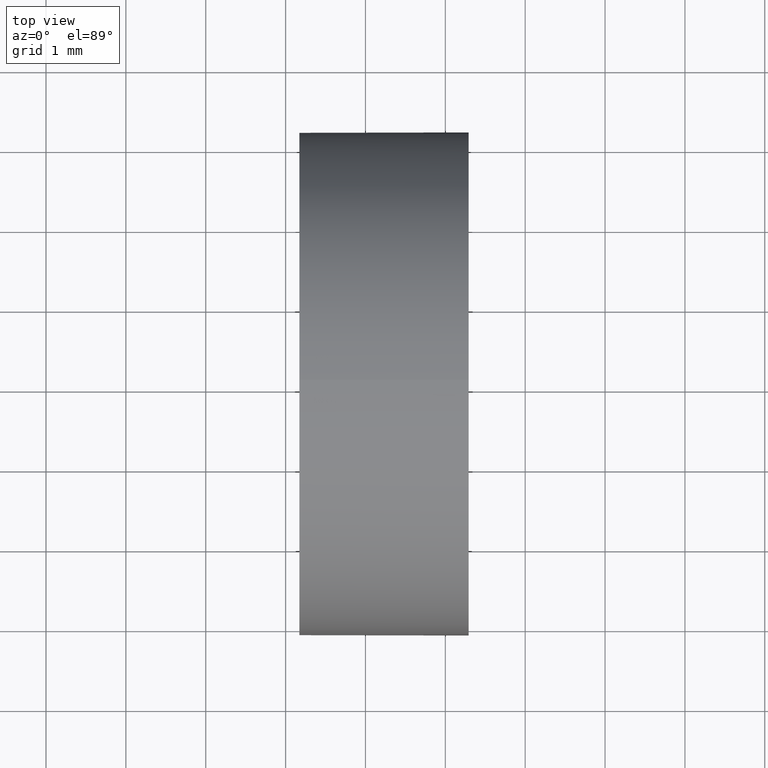
[diagram: clean part render]
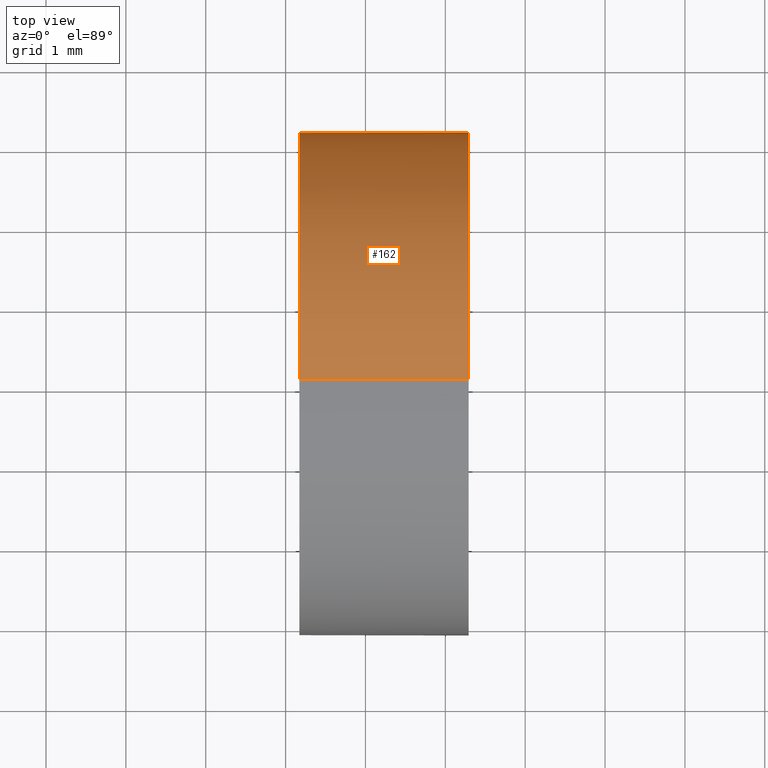
[diagram: same view with one face highlighted and labeled with its STEP entity id]
A machine part, top view. The second image highlights one B-rep face of the part: STEP entity #162.
In plain terms, the highlighted cylindrical surface (partial cylindrical patch) has radius 3.15 mm, axis along (-1, -0, -0).
Its self-contained STEP definition (entity closure, byte-faithful):
#1 = VECTOR ( 'NONE', #32, 1000.000000000000000 ) ;
#15 = AXIS2_PLACEMENT_3D ( 'NONE', #108, #139, #63 ) ;
#16 = AXIS2_PLACEMENT_3D ( 'NONE', #138, #168, #38 ) ;
#18 = VERTEX_POINT ( 'NONE', #71 ) ;
#21 = CARTESIAN_POINT ( 'NONE',  ( 22.17218947520228100, 13.04452057459747900, 3.150000000000001700 ) ) ;
#23 = DIRECTION ( 'NONE',  ( 0.0000000000000000000, 0.0000000000000000000, 1.000000000000000000 ) ) ;
#25 = ORIENTED_EDGE ( 'NONE', *, *, #175, .T. ) ;
#32 = DIRECTION ( 'NONE',  ( -1.000000000000000000, -0.0000000000000000000, -0.0000000000000000000 ) ) ;
#35 = CIRCLE ( 'NONE', #167, 3.150000000000001700 ) ;
#36 = CARTESIAN_POINT ( 'NONE',  ( 24.29218947520227800, 13.04452057459747900, 3.150000000000001700 ) ) ;
#37 = VERTEX_POINT ( 'NONE', #88 ) ;
#38 = DIRECTION ( 'NONE',  ( 0.0000000000000000000, 0.0000000000000000000, 1.000000000000000000 ) ) ;
#39 = CARTESIAN_POINT ( 'NONE',  ( 24.29218947520227800, 13.04452057459747900, 0.0000000000000000000 ) ) ;
#40 = DIRECTION ( 'NONE',  ( -1.000000000000000000, -0.0000000000000000000, -0.0000000000000000000 ) ) ;
#47 = CARTESIAN_POINT ( 'NONE',  ( 21.22493055706841100, 13.04452057459747900, -3.150000000000001700 ) ) ;
#50 = ORIENTED_EDGE ( 'NONE', *, *, #67, .T. ) ;
#63 = DIRECTION ( 'NONE',  ( 0.0000000000000000000, 0.0000000000000000000, 1.000000000000000000 ) ) ;
#67 = EDGE_CURVE ( 'NONE', #37, #18, #156, .T. ) ;
#68 = CIRCLE ( 'NONE', #15, 3.150000000000001700 ) ;
#71 = CARTESIAN_POINT ( 'NONE',  ( 22.17218947520228100, 13.04452057459747900, -3.150000000000001700 ) ) ;
#72 = DIRECTION ( 'NONE',  ( -1.000000000000000000, -0.0000000000000000000, -0.0000000000000000000 ) ) ;
#74 = FACE_OUTER_BOUND ( 'NONE', #144, .T. ) ;
#82 = EDGE_CURVE ( 'NONE', #84, #18, #125, .T. ) ;
#84 = VERTEX_POINT ( 'NONE', #21 ) ;
#88 = CARTESIAN_POINT ( 'NONE',  ( 24.29218947520227800, 13.04452057459747900, -3.150000000000001700 ) ) ;
#90 = CARTESIAN_POINT ( 'NONE',  ( 22.17218947520228100, 13.04452057459747900, 0.0000000000000000000 ) ) ;
#93 = DIRECTION ( 'NONE',  ( -1.000000000000000000, -0.0000000000000000000, -0.0000000000000000000 ) ) ;
#100 = EDGE_CURVE ( 'NONE', #140, #124, #68, .T. ) ;
#104 = DIRECTION ( 'NONE',  ( 0.0000000000000000000, 0.0000000000000000000, 1.000000000000000000 ) ) ;
#108 = CARTESIAN_POINT ( 'NONE',  ( 24.29218947520227800, 13.04452057459747900, 0.0000000000000000000 ) ) ;
#120 = CARTESIAN_POINT ( 'NONE',  ( 24.29218947520227800, 16.19452057459747600, 3.857637417314163200E-016 ) ) ;
#124 = VERTEX_POINT ( 'NONE', #120 ) ;
#125 = CIRCLE ( 'NONE', #142, 3.150000000000001700 ) ;
#138 = CARTESIAN_POINT ( 'NONE',  ( 21.22493055706841100, 13.04452057459747900, 0.0000000000000000000 ) ) ;
#139 = DIRECTION ( 'NONE',  ( -1.000000000000000000, -0.0000000000000000000, -0.0000000000000000000 ) ) ;
#140 = VERTEX_POINT ( 'NONE', #36 ) ;
#141 = VECTOR ( 'NONE', #40, 1000.000000000000000 ) ;
#142 = AXIS2_PLACEMENT_3D ( 'NONE', #90, #72, #104 ) ;
#143 = EDGE_CURVE ( 'NONE', #140, #84, #183, .T. ) ;
#144 = EDGE_LOOP ( 'NONE', ( #25, #50, #149, #174, #177 ) ) ;
#148 = CYLINDRICAL_SURFACE ( 'NONE', #16, 3.150000000000001700 ) ;
#149 = ORIENTED_EDGE ( 'NONE', *, *, #82, .F. ) ;
#156 = LINE ( 'NONE', #47, #1 ) ;
#162 = ADVANCED_FACE ( 'NONE', ( #74 ), #148, .T. ) ;
#167 = AXIS2_PLACEMENT_3D ( 'NONE', #39, #93, #23 ) ;
#168 = DIRECTION ( 'NONE',  ( -1.000000000000000000, -0.0000000000000000000, -0.0000000000000000000 ) ) ;
#170 = CARTESIAN_POINT ( 'NONE',  ( 21.22493055706841100, 13.04452057459747900, 3.150000000000001700 ) ) ;
#174 = ORIENTED_EDGE ( 'NONE', *, *, #143, .F. ) ;
#175 = EDGE_CURVE ( 'NONE', #124, #37, #35, .T. ) ;
#177 = ORIENTED_EDGE ( 'NONE', *, *, #100, .T. ) ;
#183 = LINE ( 'NONE', #170, #141 ) ;